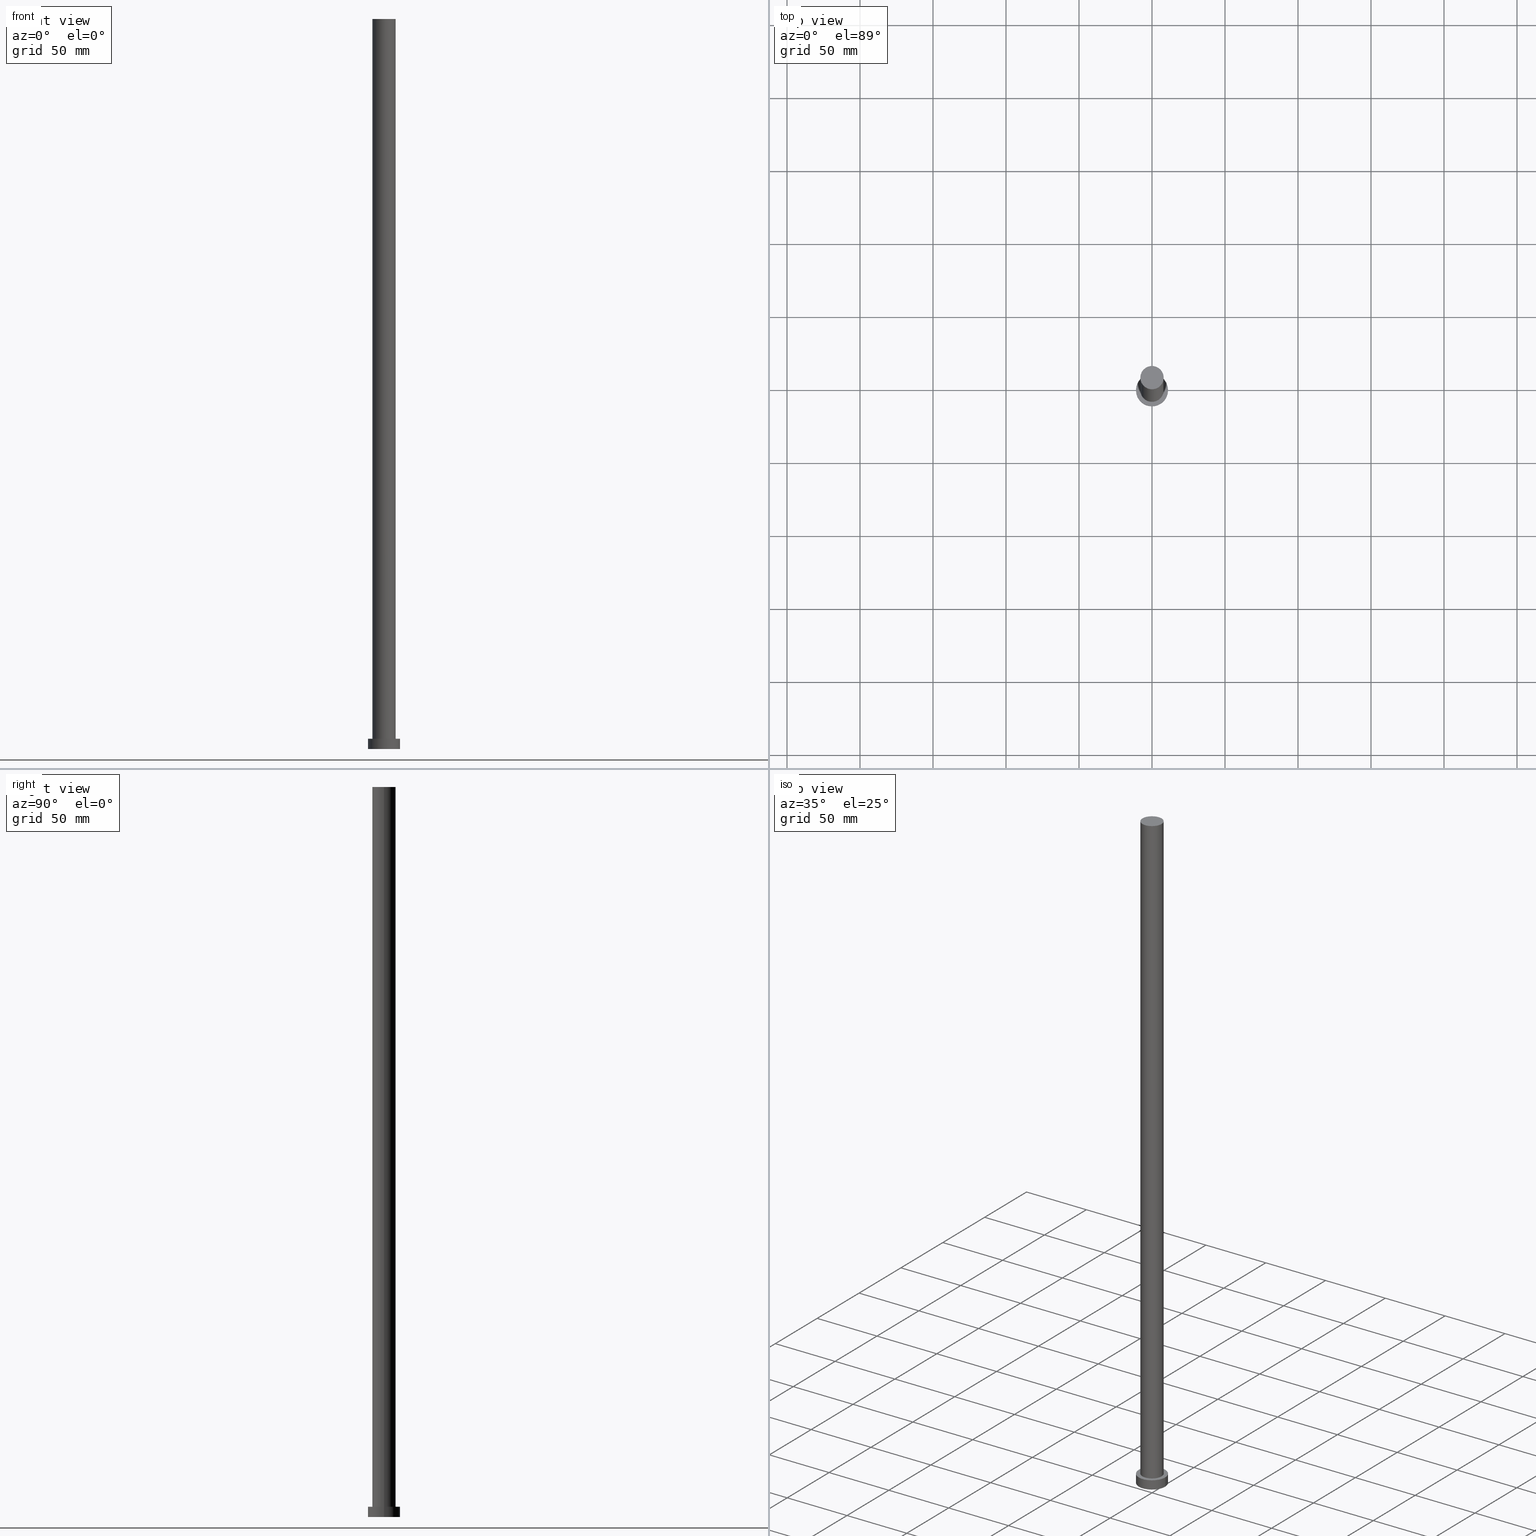
[diagram: canonical four-view strip — front | top / right | iso, engineering-drawing reading convention]
A machine part, canonical four-view strip (front | top / right | iso — engineering-drawing reading convention). The complete STEP part file that produces these views, byte-faithful:
ISO-10303-21;
HEADER;
FILE_DESCRIPTION (( 'STEP AP203' ),
    '1' );
FILE_NAME ('dd7f.STEP',
    '2023-02-13T07:36:49',
    ( '' ),
    ( '' ),
    'SwSTEP 2.0',
    'SolidWorks 2019',
    '' );
FILE_SCHEMA (( 'CONFIG_CONTROL_DESIGN' ));
ENDSEC;

DATA;
#1 = PERSON_AND_ORGANIZATION_ROLE ( 'creator' ) ;
#2 = PERSON_AND_ORGANIZATION ( #114, #50 ) ;
#3 = CC_DESIGN_PERSON_AND_ORGANIZATION_ASSIGNMENT ( #80, #215, ( #169 ) ) ;
#4 = PERSON_AND_ORGANIZATION_ROLE ( 'design_supplier' ) ;
#5 = DIRECTION ( 'NONE',  ( 1.000000000000000000, 0.000000000000000000, 0.000000000000000000 ) ) ;
#6 = ORIENTED_EDGE ( 'NONE', *, *, #75, .T. ) ;
#7 = DESIGN_CONTEXT ( 'detailed design', #172, 'design' ) ;
#8 = FACE_OUTER_BOUND ( 'NONE', #141, .T. ) ;
#9 = CALENDAR_DATE ( 2023, 13, 2 ) ;
#10 = DIRECTION ( 'NONE',  ( 1.000000000000000000, 0.000000000000000000, 0.000000000000000000 ) ) ;
#11 = AXIS2_PLACEMENT_3D ( 'NONE', #233, #210, #236 ) ;
#12 = DIRECTION ( 'NONE',  ( -0.000000000000000000, -0.000000000000000000, -1.000000000000000000 ) ) ;
#13 = FACE_BOUND ( 'NONE', #199, .T. ) ;
#14 = DIRECTION ( 'NONE',  ( -0.000000000000000000, -0.000000000000000000, -1.000000000000000000 ) ) ;
#15 = DIRECTION ( 'NONE',  ( -0.000000000000000000, -0.000000000000000000, -1.000000000000000000 ) ) ;
#16 = CC_DESIGN_PERSON_AND_ORGANIZATION_ASSIGNMENT ( #86, #100, ( #176 ) ) ;
#17 =( LENGTH_UNIT ( ) NAMED_UNIT ( * ) SI_UNIT ( .MILLI., .METRE. ) );
#18 = AXIS2_PLACEMENT_3D ( 'NONE', #187, #63, #5 ) ;
#19 = AXIS2_PLACEMENT_3D ( 'NONE', #29, #14, #96 ) ;
#20 = ADVANCED_FACE ( 'NONE', ( #134 ), #148, .T. ) ;
#21 = SECURITY_CLASSIFICATION_LEVEL ( 'unclassified' ) ;
#22 = APPROVAL_DATE_TIME ( #193, #94 ) ;
#23 = APPROVAL_STATUS ( 'not_yet_approved' ) ;
#24 = VERTEX_POINT ( 'NONE', #119 ) ;
#25 = DATE_AND_TIME ( #83, #57 ) ;
#26 = ORIENTED_EDGE ( 'NONE', *, *, #212, .T. ) ;
#27 = LOCAL_TIME ( 8, 36, 49.00000000000000000, #216 ) ;
#28 = DIRECTION ( 'NONE',  ( 0.000000000000000000, 0.000000000000000000, 1.000000000000000000 ) ) ;
#29 = CARTESIAN_POINT ( 'NONE',  ( 0.000000000000000000, 0.000000000000000000, 7.000000000000000000 ) ) ;
#30 = LINE ( 'NONE', #69, #160 ) ;
#31 = CARTESIAN_POINT ( 'NONE',  ( -11.00000000000000000, 0.000000000000000000, 7.000000000000000000 ) ) ;
#32 = PRODUCT_DEFINITION_SHAPE ( 'NONE', 'NONE',  #135 ) ;
#33 = VECTOR ( 'NONE', #12, 1000.000000000000000 ) ;
#34 = DIRECTION ( 'NONE',  ( 0.000000000000000000, 0.000000000000000000, 1.000000000000000000 ) ) ;
#35 = CARTESIAN_POINT ( 'NONE',  ( -11.00000000000000000, 0.000000000000000000, 0.000000000000000000 ) ) ;
#36 = ORIENTED_EDGE ( 'NONE', *, *, #240, .F. ) ;
#37 = LOCAL_TIME ( 8, 36, 49.00000000000000000, #120 ) ;
#38 = EDGE_CURVE ( 'NONE', #234, #64, #124, .T. ) ;
#39 = DATE_TIME_ROLE ( 'creation_date' ) ;
#40 = ORIENTED_EDGE ( 'NONE', *, *, #196, .F. ) ;
#41 = CIRCLE ( 'NONE', #154, 8.000000000000000000 ) ;
#42 = ORIENTED_EDGE ( 'NONE', *, *, #212, .F. ) ;
#43 = DIRECTION ( 'NONE',  ( -0.000000000000000000, -0.000000000000000000, -1.000000000000000000 ) ) ;
#44 = APPLICATION_CONTEXT ( 'configuration controlled 3d designs of mechanical parts and assemblies' ) ;
#45 = DIRECTION ( 'NONE',  ( 1.000000000000000000, 0.000000000000000000, -0.000000000000000000 ) ) ;
#46 = EDGE_LOOP ( 'NONE', ( #40, #207 ) ) ;
#47 = CARTESIAN_POINT ( 'NONE',  ( 0.000000000000000000, 0.000000000000000000, 0.000000000000000000 ) ) ;
#48 = CARTESIAN_POINT ( 'NONE',  ( 0.000000000000000000, 0.000000000000000000, 7.000000000000000000 ) ) ;
#49 = CARTESIAN_POINT ( 'NONE',  ( -8.000000000000000000, 0.000000000000000000, 500.0000000000000000 ) ) ;
#50 = ORGANIZATION ( 'NEUR�EN�', 'NEUR�EN�', '' ) ;
#51 = CARTESIAN_POINT ( 'NONE',  ( 0.000000000000000000, 0.000000000000000000, 500.0000000000000000 ) ) ;
#52 = EDGE_CURVE ( 'NONE', #234, #224, #92, .T. ) ;
#53 =( NAMED_UNIT ( * ) PLANE_ANGLE_UNIT ( ) SI_UNIT ( $, .RADIAN. ) );
#54 = PERSON_AND_ORGANIZATION ( #114, #50 ) ;
#55 = CC_DESIGN_PERSON_AND_ORGANIZATION_ASSIGNMENT ( #136, #4, ( #169 ) ) ;
#56 = ORIENTED_EDGE ( 'NONE', *, *, #78, .T. ) ;
#57 = LOCAL_TIME ( 8, 36, 49.00000000000000000, #238 ) ;
#58 = PERSON_AND_ORGANIZATION ( #114, #50 ) ;
#59 = APPROVAL_ROLE ( '' ) ;
#60 = ORIENTED_EDGE ( 'NONE', *, *, #78, .F. ) ;
#61 = AXIS2_PLACEMENT_3D ( 'NONE', #184, #28, #10 ) ;
#62 = APPLICATION_PROTOCOL_DEFINITION ( 'international standard', 'config_control_design', 1994, #172 ) ;
#63 = DIRECTION ( 'NONE',  ( 0.000000000000000000, 0.000000000000000000, 1.000000000000000000 ) ) ;
#64 = VERTEX_POINT ( 'NONE', #132 ) ;
#65 = APPROVAL_ROLE ( '' ) ;
#66 = ADVANCED_FACE ( 'NONE', ( #13, #192 ), #228, .T. ) ;
#67 = DIRECTION ( 'NONE',  ( 1.000000000000000000, 0.000000000000000000, 0.000000000000000000 ) ) ;
#68 = APPROVAL_PERSON_ORGANIZATION ( #54, #205, #65 ) ;
#69 = CARTESIAN_POINT ( 'NONE',  ( 11.00000000000000000, 1.347111479062088405E-15, 7.000000000000000000 ) ) ;
#70 = CARTESIAN_POINT ( 'NONE',  ( 0.000000000000000000, 0.000000000000000000, 500.0000000000000000 ) ) ;
#71 = EDGE_LOOP ( 'NONE', ( #26, #155 ) ) ;
#72 = DIRECTION ( 'NONE',  ( 0.000000000000000000, 0.000000000000000000, 1.000000000000000000 ) ) ;
#73 = AXIS2_PLACEMENT_3D ( 'NONE', #225, #72, #45 ) ;
#74 = ORIENTED_EDGE ( 'NONE', *, *, #110, .F. ) ;
#75 = EDGE_CURVE ( 'NONE', #138, #102, #133, .T. ) ;
#76 = AXIS2_PLACEMENT_3D ( 'NONE', #158, #243, #227 ) ;
#77 = AXIS2_PLACEMENT_3D ( 'NONE', #48, #34, #112 ) ;
#78 = EDGE_CURVE ( 'NONE', #249, #224, #201, .T. ) ;
#79 = MANIFOLD_SOLID_BREP ( 'P�idat vysunut�m3', #185 ) ;
#80 = PERSON_AND_ORGANIZATION ( #114, #50 ) ;
#81 = LOCAL_TIME ( 8, 36, 49.00000000000000000, #137 ) ;
#82 = PERSON_AND_ORGANIZATION_ROLE ( 'design_owner' ) ;
#83 = CALENDAR_DATE ( 2023, 13, 2 ) ;
#84 = ORIENTED_EDGE ( 'NONE', *, *, #196, .T. ) ;
#85 = CC_DESIGN_APPROVAL ( #94, ( #135 ) ) ;
#86 = PERSON_AND_ORGANIZATION ( #114, #50 ) ;
#87 = ORIENTED_EDGE ( 'NONE', *, *, #38, .T. ) ;
#88 = EDGE_CURVE ( 'NONE', #214, #102, #93, .T. ) ;
#89 = CARTESIAN_POINT ( 'NONE',  ( 11.00000000000000000, 1.347111479062088405E-15, 0.000000000000000000 ) ) ;
#90 = CC_DESIGN_APPROVAL ( #205, ( #176 ) ) ;
#91 = DIRECTION ( 'NONE',  ( -0.000000000000000000, -0.000000000000000000, -1.000000000000000000 ) ) ;
#92 = LINE ( 'NONE', #189, #99 ) ;
#93 = LINE ( 'NONE', #31, #33 ) ;
#94 = APPROVAL ( #23, 'NEUR�EN�' ) ;
#95 = CARTESIAN_POINT ( 'NONE',  ( 0.000000000000000000, 0.000000000000000000, 7.000000000000000000 ) ) ;
#96 = DIRECTION ( 'NONE',  ( -1.000000000000000000, 0.000000000000000000, 0.000000000000000000 ) ) ;
#97 = ORIENTED_EDGE ( 'NONE', *, *, #191, .T. ) ;
#98 = ORIENTED_EDGE ( 'NONE', *, *, #110, .T. ) ;
#99 = VECTOR ( 'NONE', #15, 1000.000000000000000 ) ;
#100 = PERSON_AND_ORGANIZATION_ROLE ( 'classification_officer' ) ;
#101 = APPROVAL ( #218, 'NEUR�EN�' ) ;
#102 = VERTEX_POINT ( 'NONE', #35 ) ;
#103 = APPROVAL_DATE_TIME ( #25, #101 ) ;
#104 = CC_DESIGN_PERSON_AND_ORGANIZATION_ASSIGNMENT ( #177, #1, ( #135 ) ) ;
#105 = CIRCLE ( 'NONE', #11, 8.000000000000000000 ) ;
#106 = DIRECTION ( 'NONE',  ( 1.000000000000000000, 0.000000000000000000, 0.000000000000000000 ) ) ;
#107 = DIRECTION ( 'NONE',  ( 0.000000000000000000, 0.000000000000000000, 1.000000000000000000 ) ) ;
#108 = CARTESIAN_POINT ( 'NONE',  ( 0.000000000000000000, 0.000000000000000000, 7.000000000000000000 ) ) ;
#109 = CIRCLE ( 'NONE', #117, 11.00000000000000000 ) ;
#110 = EDGE_CURVE ( 'NONE', #64, #249, #222, .T. ) ;
#111 = FACE_OUTER_BOUND ( 'NONE', #147, .T. ) ;
#112 = DIRECTION ( 'NONE',  ( 1.000000000000000000, 0.000000000000000000, -0.000000000000000000 ) ) ;
#113 = CYLINDRICAL_SURFACE ( 'NONE', #230, 8.000000000000000000 ) ;
#114 = PERSON ( 'NEUR�EN�', 'NEUR�EN�', 'NEUR�EN�', ('NEUR�EN�'), ('NEUR�EN�'), ('NEUR�EN�') ) ;
#115 = EDGE_LOOP ( 'NONE', ( #170, #42, #123, #84 ) ) ;
#116 = PRODUCT_RELATED_PRODUCT_CATEGORY ( 'detail', '', ( #150 ) ) ;
#117 = AXIS2_PLACEMENT_3D ( 'NONE', #241, #107, #67 ) ;
#118 = DATE_AND_TIME ( #156, #37 ) ;
#119 = CARTESIAN_POINT ( 'NONE',  ( 11.00000000000000000, 1.347111479062088405E-15, 7.000000000000000000 ) ) ;
#120 = COORDINATED_UNIVERSAL_TIME_OFFSET ( 1, 0, .AHEAD. ) ;
#121 = CC_DESIGN_DATE_AND_TIME_ASSIGNMENT ( #252, #39, ( #135 ) ) ;
#122 = CC_DESIGN_APPROVAL ( #101, ( #169 ) ) ;
#123 = ORIENTED_EDGE ( 'NONE', *, *, #88, .T. ) ;
#124 = CIRCLE ( 'NONE', #242, 8.000000000000000000 ) ;
#125 = CARTESIAN_POINT ( 'NONE',  ( 0.000000000000000000, 0.000000000000000000, 500.0000000000000000 ) ) ;
#126 = EDGE_LOOP ( 'NONE', ( #74, #246, #131, #219 ) ) ;
#127 = CARTESIAN_POINT ( 'NONE',  ( -11.00000000000000000, 0.000000000000000000, 7.000000000000000000 ) ) ;
#128 = DIRECTION ( 'NONE',  ( -0.000000000000000000, -0.000000000000000000, -1.000000000000000000 ) ) ;
#129 = AXIS2_PLACEMENT_3D ( 'NONE', #47, #186, #161 ) ;
#130 = DIRECTION ( 'NONE',  ( 0.000000000000000000, 0.000000000000000000, 1.000000000000000000 ) ) ;
#131 = ORIENTED_EDGE ( 'NONE', *, *, #52, .T. ) ;
#132 = CARTESIAN_POINT ( 'NONE',  ( 8.000000000000000000, 9.797174393178825657E-16, 500.0000000000000000 ) ) ;
#133 = CIRCLE ( 'NONE', #18, 11.00000000000000000 ) ;
#134 = FACE_OUTER_BOUND ( 'NONE', #244, .T. ) ;
#135 = PRODUCT_DEFINITION ( 'NEZN�M�', '', #169, #7 ) ;
#136 = PERSON_AND_ORGANIZATION ( #114, #50 ) ;
#137 = COORDINATED_UNIVERSAL_TIME_OFFSET ( 1, 0, .AHEAD. ) ;
#138 = VERTEX_POINT ( 'NONE', #89 ) ;
#139 = CARTESIAN_POINT ( 'NONE',  ( 8.000000000000000000, 9.797174393178825657E-16, 7.000000000000000000 ) ) ;
#140 = DIRECTION ( 'NONE',  ( 1.000000000000000000, 0.000000000000000000, 0.000000000000000000 ) ) ;
#141 = EDGE_LOOP ( 'NONE', ( #87, #162 ) ) ;
#142 = FACE_OUTER_BOUND ( 'NONE', #46, .T. ) ;
#143 = DIRECTION ( 'NONE',  ( 1.000000000000000000, 0.000000000000000000, 0.000000000000000000 ) ) ;
#144 = APPROVAL_DATE_TIME ( #163, #205 ) ;
#145 = DIRECTION ( 'NONE',  ( -0.000000000000000000, -0.000000000000000000, -1.000000000000000000 ) ) ;
#146 = DIRECTION ( 'NONE',  ( -0.000000000000000000, -0.000000000000000000, -1.000000000000000000 ) ) ;
#147 = EDGE_LOOP ( 'NONE', ( #157, #98, #56, #208 ) ) ;
#148 = CYLINDRICAL_SURFACE ( 'NONE', #151, 11.00000000000000000 ) ;
#149 = DIRECTION ( 'NONE',  ( 0.000000000000000000, 0.000000000000000000, 1.000000000000000000 ) ) ;
#150 = PRODUCT ( 'dd7f', 'dd7f', '', ( #178 ) ) ;
#151 = AXIS2_PLACEMENT_3D ( 'NONE', #95, #128, #165 ) ;
#152 = APPROVAL_STATUS ( 'not_yet_approved' ) ;
#153 = CIRCLE ( 'NONE', #61, 11.00000000000000000 ) ;
#154 = AXIS2_PLACEMENT_3D ( 'NONE', #168, #202, #106 ) ;
#155 = ORIENTED_EDGE ( 'NONE', *, *, #240, .T. ) ;
#156 = CALENDAR_DATE ( 2023, 13, 2 ) ;
#157 = ORIENTED_EDGE ( 'NONE', *, *, #166, .F. ) ;
#158 = CARTESIAN_POINT ( 'NONE',  ( 0.000000000000000000, 0.000000000000000000, 7.000000000000000000 ) ) ;
#159 = SHAPE_DEFINITION_REPRESENTATION ( #32, #167 ) ;
#160 = VECTOR ( 'NONE', #146, 1000.000000000000000 ) ;
#161 = DIRECTION ( 'NONE',  ( 1.000000000000000000, 0.000000000000000000, -0.000000000000000000 ) ) ;
#162 = ORIENTED_EDGE ( 'NONE', *, *, #166, .T. ) ;
#163 = DATE_AND_TIME ( #9, #194 ) ;
#164 = PLANE ( 'NONE',  #129 ) ;
#165 = DIRECTION ( 'NONE',  ( -1.000000000000000000, 0.000000000000000000, 0.000000000000000000 ) ) ;
#166 = EDGE_CURVE ( 'NONE', #64, #234, #41, .T. ) ;
#167 = ADVANCED_BREP_SHAPE_REPRESENTATION ( 'dd7f', ( #79, #251 ), #248 ) ;
#168 = CARTESIAN_POINT ( 'NONE',  ( 0.000000000000000000, 0.000000000000000000, 500.0000000000000000 ) ) ;
#169 = PRODUCT_DEFINITION_FORMATION_WITH_SPECIFIED_SOURCE ( 'LIBOVOLN�', '', #150, .NOT_KNOWN. ) ;
#170 = ORIENTED_EDGE ( 'NONE', *, *, #191, .F. ) ;
#171 = APPLICATION_PROTOCOL_DEFINITION ( 'international standard', 'config_control_design', 1994, #44 ) ;
#172 = APPLICATION_CONTEXT ( 'configuration controlled 3d designs of mechanical parts and assemblies' ) ;
#173 = AXIS2_PLACEMENT_3D ( 'NONE', #108, #130, #140 ) ;
#174 = CALENDAR_DATE ( 2023, 13, 2 ) ;
#175 = DATE_TIME_ROLE ( 'classification_date' ) ;
#176 = SECURITY_CLASSIFICATION ( '', '', #21 ) ;
#177 = PERSON_AND_ORGANIZATION ( #114, #50 ) ;
#178 = MECHANICAL_CONTEXT ( 'NONE', #44, 'mechanical' ) ;
#179 = ADVANCED_FACE ( 'NONE', ( #8 ), #247, .T. ) ;
#180 = CALENDAR_DATE ( 2023, 13, 2 ) ;
#181 = CARTESIAN_POINT ( 'NONE',  ( 8.000000000000000000, 9.797174393178825657E-16, 500.0000000000000000 ) ) ;
#182 = CC_DESIGN_PERSON_AND_ORGANIZATION_ASSIGNMENT ( #253, #82, ( #150 ) ) ;
#183 = UNCERTAINTY_MEASURE_WITH_UNIT (LENGTH_MEASURE( 1.000000000000000082E-05 ), #17, 'distance_accuracy_value', 'NONE');
#184 = CARTESIAN_POINT ( 'NONE',  ( 0.000000000000000000, 0.000000000000000000, 0.000000000000000000 ) ) ;
#185 = CLOSED_SHELL ( 'NONE', ( #232, #20, #239, #66, #209, #237, #179 ) ) ;
#186 = DIRECTION ( 'NONE',  ( 0.000000000000000000, 0.000000000000000000, 1.000000000000000000 ) ) ;
#187 = CARTESIAN_POINT ( 'NONE',  ( 0.000000000000000000, 0.000000000000000000, 0.000000000000000000 ) ) ;
#188 = DIRECTION ( 'NONE',  ( -1.000000000000000000, 0.000000000000000000, 0.000000000000000000 ) ) ;
#189 = CARTESIAN_POINT ( 'NONE',  ( -8.000000000000000000, 0.000000000000000000, 500.0000000000000000 ) ) ;
#190 = APPROVAL_PERSON_ORGANIZATION ( #2, #94, #59 ) ;
#191 = EDGE_CURVE ( 'NONE', #24, #138, #30, .T. ) ;
#192 = FACE_OUTER_BOUND ( 'NONE', #71, .T. ) ;
#193 = DATE_AND_TIME ( #180, #81 ) ;
#194 = LOCAL_TIME ( 8, 36, 49.00000000000000000, #221 ) ;
#195 = DIRECTION ( 'NONE',  ( 1.000000000000000000, 0.000000000000000000, 0.000000000000000000 ) ) ;
#196 = EDGE_CURVE ( 'NONE', #102, #138, #153, .T. ) ;
#197 = ORIENTED_EDGE ( 'NONE', *, *, #255, .F. ) ;
#198 = APPROVAL_ROLE ( '' ) ;
#199 = EDGE_LOOP ( 'NONE', ( #197, #60 ) ) ;
#200 = CYLINDRICAL_SURFACE ( 'NONE', #19, 11.00000000000000000 ) ;
#201 = CIRCLE ( 'NONE', #173, 8.000000000000000000 ) ;
#202 = DIRECTION ( 'NONE',  ( 0.000000000000000000, 0.000000000000000000, 1.000000000000000000 ) ) ;
#203 = CARTESIAN_POINT ( 'NONE',  ( -8.000000000000000000, 0.000000000000000000, 7.000000000000000000 ) ) ;
#204 = DIRECTION ( 'NONE',  ( 0.000000000000000000, 0.000000000000000000, 1.000000000000000000 ) ) ;
#205 = APPROVAL ( #152, 'NEUR�EN�' ) ;
#206 = FACE_OUTER_BOUND ( 'NONE', #126, .T. ) ;
#207 = ORIENTED_EDGE ( 'NONE', *, *, #75, .F. ) ;
#208 = ORIENTED_EDGE ( 'NONE', *, *, #52, .F. ) ;
#209 = ADVANCED_FACE ( 'NONE', ( #142 ), #164, .F. ) ;
#210 = DIRECTION ( 'NONE',  ( 0.000000000000000000, 0.000000000000000000, 1.000000000000000000 ) ) ;
#211 =( NAMED_UNIT ( * ) SI_UNIT ( $, .STERADIAN. ) SOLID_ANGLE_UNIT ( ) );
#212 = EDGE_CURVE ( 'NONE', #214, #24, #254, .T. ) ;
#213 = AXIS2_PLACEMENT_3D ( 'NONE', #70, #145, #229 ) ;
#214 = VERTEX_POINT ( 'NONE', #127 ) ;
#215 = PERSON_AND_ORGANIZATION_ROLE ( 'creator' ) ;
#216 = COORDINATED_UNIVERSAL_TIME_OFFSET ( 1, 0, .AHEAD. ) ;
#217 = VECTOR ( 'NONE', #91, 1000.000000000000000 ) ;
#218 = APPROVAL_STATUS ( 'not_yet_approved' ) ;
#219 = ORIENTED_EDGE ( 'NONE', *, *, #255, .T. ) ;
#220 = CC_DESIGN_DATE_AND_TIME_ASSIGNMENT ( #118, #175, ( #176 ) ) ;
#221 = COORDINATED_UNIVERSAL_TIME_OFFSET ( 1, 0, .AHEAD. ) ;
#222 = LINE ( 'NONE', #181, #217 ) ;
#223 = APPROVAL_PERSON_ORGANIZATION ( #58, #101, #198 ) ;
#224 = VERTEX_POINT ( 'NONE', #203 ) ;
#225 = CARTESIAN_POINT ( 'NONE',  ( 0.000000000000000000, 0.000000000000000000, 500.0000000000000000 ) ) ;
#226 = ORIENTED_EDGE ( 'NONE', *, *, #88, .F. ) ;
#227 = DIRECTION ( 'NONE',  ( 1.000000000000000000, 0.000000000000000000, 0.000000000000000000 ) ) ;
#228 = PLANE ( 'NONE',  #77 ) ;
#229 = DIRECTION ( 'NONE',  ( -1.000000000000000000, 0.000000000000000000, 0.000000000000000000 ) ) ;
#230 = AXIS2_PLACEMENT_3D ( 'NONE', #125, #43, #188 ) ;
#231 = FACE_OUTER_BOUND ( 'NONE', #115, .T. ) ;
#232 = ADVANCED_FACE ( 'NONE', ( #111 ), #245, .T. ) ;
#233 = CARTESIAN_POINT ( 'NONE',  ( 0.000000000000000000, 0.000000000000000000, 7.000000000000000000 ) ) ;
#234 = VERTEX_POINT ( 'NONE', #49 ) ;
#235 = CC_DESIGN_SECURITY_CLASSIFICATION ( #176, ( #169 ) ) ;
#236 = DIRECTION ( 'NONE',  ( 1.000000000000000000, 0.000000000000000000, 0.000000000000000000 ) ) ;
#237 = ADVANCED_FACE ( 'NONE', ( #206 ), #113, .T. ) ;
#238 = COORDINATED_UNIVERSAL_TIME_OFFSET ( 1, 0, .AHEAD. ) ;
#239 = ADVANCED_FACE ( 'NONE', ( #231 ), #200, .T. ) ;
#240 = EDGE_CURVE ( 'NONE', #24, #214, #109, .T. ) ;
#241 = CARTESIAN_POINT ( 'NONE',  ( 0.000000000000000000, 0.000000000000000000, 7.000000000000000000 ) ) ;
#242 = AXIS2_PLACEMENT_3D ( 'NONE', #51, #204, #143 ) ;
#243 = DIRECTION ( 'NONE',  ( 0.000000000000000000, 0.000000000000000000, 1.000000000000000000 ) ) ;
#244 = EDGE_LOOP ( 'NONE', ( #36, #97, #6, #226 ) ) ;
#245 = CYLINDRICAL_SURFACE ( 'NONE', #213, 8.000000000000000000 ) ;
#246 = ORIENTED_EDGE ( 'NONE', *, *, #38, .F. ) ;
#247 = PLANE ( 'NONE',  #73 ) ;
#248 =( GEOMETRIC_REPRESENTATION_CONTEXT ( 3 ) GLOBAL_UNCERTAINTY_ASSIGNED_CONTEXT ( ( #183 ) ) GLOBAL_UNIT_ASSIGNED_CONTEXT ( ( #17, #53, #211 ) ) REPRESENTATION_CONTEXT ( 'NONE', 'WORKASPACE' ) );
#249 = VERTEX_POINT ( 'NONE', #139 ) ;
#250 = CARTESIAN_POINT ( 'NONE',  ( 0.000000000000000000, 0.000000000000000000, 0.000000000000000000 ) ) ;
#251 = AXIS2_PLACEMENT_3D ( 'NONE', #250, #149, #195 ) ;
#252 = DATE_AND_TIME ( #174, #27 ) ;
#253 = PERSON_AND_ORGANIZATION ( #114, #50 ) ;
#254 = CIRCLE ( 'NONE', #76, 11.00000000000000000 ) ;
#255 = EDGE_CURVE ( 'NONE', #224, #249, #105, .T. ) ;
ENDSEC;
END-ISO-10303-21;
